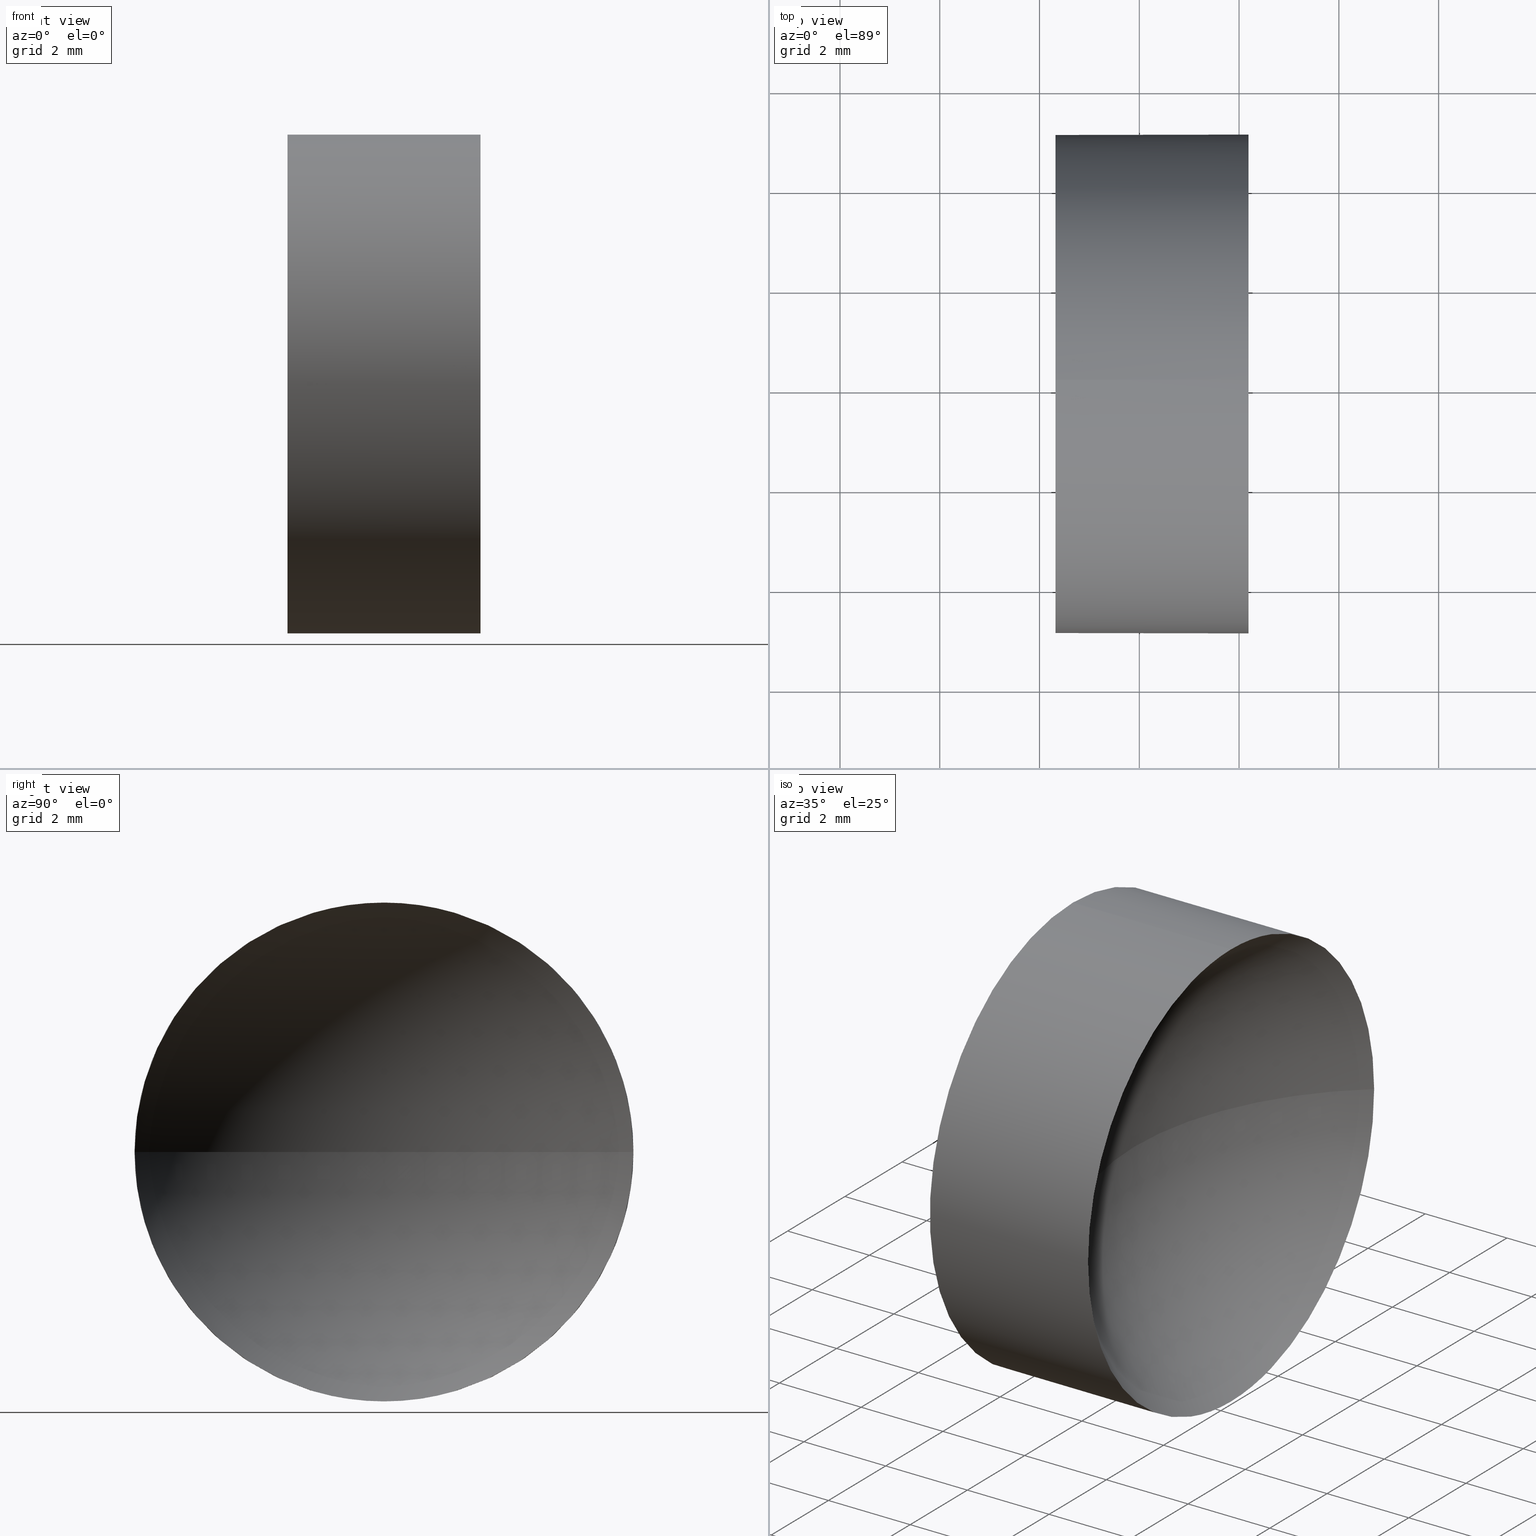
[diagram: canonical four-view strip — front | top / right | iso, engineering-drawing reading convention]
A machine part, canonical four-view strip (front | top / right | iso — engineering-drawing reading convention). The complete STEP part file that produces these views, byte-faithful:
ISO-10303-21;
HEADER;
FILE_DESCRIPTION (( 'STEP AP214' ),
    '1' );
FILE_NAME ('120010.STEP',
    '2019-06-14T03:35:59',
    ( '' ),
    ( '' ),
    'SwSTEP 2.0',
    'SolidWorks 2016',
    '' );
FILE_SCHEMA (( 'AUTOMOTIVE_DESIGN' ));
ENDSEC;

DATA;
#1 = AXIS2_PLACEMENT_3D ( 'NONE', #17, #164, #165 ) ;
#2 = MECHANICAL_DESIGN_GEOMETRIC_PRESENTATION_REPRESENTATION (  '', ( #124 ), #97 ) ;
#3 = COLOUR_RGB ( '',1.000000000000000000, 1.000000000000000000, 1.000000000000000000 ) ;
#4 = CARTESIAN_POINT ( 'NONE',  ( 42.44986111413682300, 26.08904114919495900, -5.000000000000000900 ) ) ;
#5 = AXIS2_PLACEMENT_3D ( 'NONE', #88, #160, #28 ) ;
#6 = PRODUCT_RELATED_PRODUCT_CATEGORY ( 'part', '', ( #60 ) ) ;
#7 = PRODUCT_DEFINITION_SHAPE ( 'NONE', 'NONE',  #29 ) ;
#8 = SURFACE_STYLE_FILL_AREA ( #179 ) ;
#9 = VERTEX_POINT ( 'NONE', #12 ) ;
#10 = PRESENTATION_LAYER_ASSIGNMENT (  '', '', ( #181 ) ) ;
#11 = FACE_OUTER_BOUND ( 'NONE', #92, .T. ) ;
#12 = CARTESIAN_POINT ( 'NONE',  ( 44.31958549791029600, 26.08904114919495900, -5.000000000000000900 ) ) ;
#13 = ORIENTED_EDGE ( 'NONE', *, *, #50, .F. ) ;
#14 = ORIENTED_EDGE ( 'NONE', *, *, #50, .T. ) ;
#15 = CARTESIAN_POINT ( 'NONE',  ( 48.18958549791029400, 26.08904114919495900, 0.0000000000000000000 ) ) ;
#16 = MANIFOLD_SOLID_BREP ( '��ת1', #27 ) ;
#17 = CARTESIAN_POINT ( 'NONE',  ( 0.0000000000000000000, 0.0000000000000000000, 0.0000000000000000000 ) ) ;
#18 = PRODUCT_CONTEXT ( 'NONE', #151, 'mechanical' ) ;
#19 = EDGE_LOOP ( 'NONE', ( #111, #75 ) ) ;
#20 = AXIS2_PLACEMENT_3D ( 'NONE', #104, #117, #71 ) ;
#21 = AXIS2_PLACEMENT_3D ( 'NONE', #161, #148, #57 ) ;
#22 = VERTEX_POINT ( 'NONE', #83 ) ;
#23 = ORIENTED_EDGE ( 'NONE', *, *, #45, .T. ) ;
#24 = DIRECTION ( 'NONE',  ( -1.000000000000000000, -0.0000000000000000000, -0.0000000000000000000 ) ) ;
#25 =( LENGTH_UNIT ( ) NAMED_UNIT ( * ) SI_UNIT ( .MILLI., .METRE. ) );
#26 = CARTESIAN_POINT ( 'NONE',  ( 44.31958549791029600, 26.08904114919495900, 0.0000000000000000000 ) ) ;
#27 = CLOSED_SHELL ( 'NONE', ( #76, #61, #95, #90, #107 ) ) ;
#28 = DIRECTION ( 'NONE',  ( 0.0000000000000000000, -1.000000000000000000, -1.224646799147353000E-016 ) ) ;
#29 = PRODUCT_DEFINITION ( 'δ֪', '', #42, #116 ) ;
#30 = DIRECTION ( 'NONE',  ( -1.000000000000000000, -0.0000000000000000000, -0.0000000000000000000 ) ) ;
#31 =( NAMED_UNIT ( * ) PLANE_ANGLE_UNIT ( ) SI_UNIT ( $, .RADIAN. ) );
#32 = CIRCLE ( 'NONE', #56, 5.000000000000000900 ) ;
#33 = SPHERICAL_SURFACE ( 'NONE', #80, 6.459261603375526100 ) ;
#34 =( NAMED_UNIT ( * ) SI_UNIT ( $, .STERADIAN. ) SOLID_ANGLE_UNIT ( ) );
#35 = FACE_OUTER_BOUND ( 'NONE', #105, .T. ) ;
#36 = ORIENTED_EDGE ( 'NONE', *, *, #112, .T. ) ;
#37 = DIRECTION ( 'NONE',  ( 0.0000000000000000000, 0.0000000000000000000, 1.000000000000000000 ) ) ;
#38 = DIRECTION ( 'NONE',  ( 0.0000000000000000000, 0.0000000000000000000, 1.000000000000000000 ) ) ;
#39 = DIRECTION ( 'NONE',  ( 0.0000000000000000000, 0.0000000000000000000, 1.000000000000000000 ) ) ;
#40 = CIRCLE ( 'NONE', #131, 5.000000000000000900 ) ;
#41 = DIRECTION ( 'NONE',  ( -1.000000000000000000, -0.0000000000000000000, -0.0000000000000000000 ) ) ;
#42 = PRODUCT_DEFINITION_FORMATION_WITH_SPECIFIED_SOURCE ( '�κ�', '', #60, .NOT_KNOWN. ) ;
#43 =( LENGTH_UNIT ( ) NAMED_UNIT ( * ) SI_UNIT ( .MILLI., .METRE. ) );
#44 = ORIENTED_EDGE ( 'NONE', *, *, #110, .T. ) ;
#45 = EDGE_CURVE ( 'NONE', #22, #123, #122, .T. ) ;
#46 = ORIENTED_EDGE ( 'NONE', *, *, #125, .F. ) ;
#47 = CARTESIAN_POINT ( 'NONE',  ( 52.27884710128582700, 26.08904114919495900, 0.0000000000000000000 ) ) ;
#48 = CIRCLE ( 'NONE', #178, 5.000000000000000900 ) ;
#49 = ORIENTED_EDGE ( 'NONE', *, *, #112, .F. ) ;
#50 = EDGE_CURVE ( 'NONE', #85, #22, #137, .T. ) ;
#51 = CARTESIAN_POINT ( 'NONE',  ( 48.18958549791029400, 31.08904114919495900, 6.123233995736765300E-016 ) ) ;
#52 = DIRECTION ( 'NONE',  ( -1.000000000000000000, -0.0000000000000000000, -0.0000000000000000000 ) ) ;
#53 = CARTESIAN_POINT ( 'NONE',  ( 42.44986111413682300, 26.08904114919495900, 0.0000000000000000000 ) ) ;
#54 = COLOUR_RGB ( '',1.000000000000000000, 1.000000000000000000, 1.000000000000000000 ) ;
#55 = CARTESIAN_POINT ( 'NONE',  ( 45.81958549791029600, 26.08904114919495900, 0.0000000000000000000 ) ) ;
#56 = AXIS2_PLACEMENT_3D ( 'NONE', #174, #30, #135 ) ;
#57 = DIRECTION ( 'NONE',  ( 0.0000000000000000000, 0.0000000000000000000, 1.000000000000000000 ) ) ;
#58 = VERTEX_POINT ( 'NONE', #51 ) ;
#59 =( NAMED_UNIT ( * ) SI_UNIT ( $, .STERADIAN. ) SOLID_ANGLE_UNIT ( ) );
#60 = PRODUCT ( '120010', '120010', '', ( #18 ) ) ;
#61 = ADVANCED_FACE ( 'NONE', ( #11 ), #78, .F. ) ;
#62 = APPLICATION_PROTOCOL_DEFINITION ( 'draft international standard', 'automotive_design', 1998, #106 ) ;
#63 = ORIENTED_EDGE ( 'NONE', *, *, #139, .T. ) ;
#64 = AXIS2_PLACEMENT_3D ( 'NONE', #53, #147, #171 ) ;
#65 = ORIENTED_EDGE ( 'NONE', *, *, #180, .F. ) ;
#66 = FILL_AREA_STYLE ('',( #101 ) ) ;
#67 = VERTEX_POINT ( 'NONE', #118 ) ;
#68 = SURFACE_SIDE_STYLE ('',( #173 ) ) ;
#69 = LINE ( 'NONE', #132, #121 ) ;
#70 = ORIENTED_EDGE ( 'NONE', *, *, #155, .F. ) ;
#71 = DIRECTION ( 'NONE',  ( -1.000000000000000000, 0.0000000000000000000, 0.0000000000000000000 ) ) ;
#72 = CARTESIAN_POINT ( 'NONE',  ( 44.31958549791029600, 26.08904114919495900, 0.0000000000000000000 ) ) ;
#73 = VECTOR ( 'NONE', #86, 1000.000000000000000 ) ;
#74 = PLANE ( 'NONE',  #96 ) ;
#75 = ORIENTED_EDGE ( 'NONE', *, *, #155, .T. ) ;
#76 = ADVANCED_FACE ( 'NONE', ( #108 ), #82, .T. ) ;
#77 = CIRCLE ( 'NONE', #21, 5.000000000000000900 ) ;
#78 = SPHERICAL_SURFACE ( 'NONE', #184, 6.459261603375526100 ) ;
#79 = ORIENTED_EDGE ( 'NONE', *, *, #120, .F. ) ;
#80 = AXIS2_PLACEMENT_3D ( 'NONE', #136, #37, #150 ) ;
#81 = UNCERTAINTY_MEASURE_WITH_UNIT (LENGTH_MEASURE( 1.000000000000000100E-005 ), #25, 'distance_accuracy_value', 'NONE');
#82 = CYLINDRICAL_SURFACE ( 'NONE', #166, 5.000000000000000900 ) ;
#83 = CARTESIAN_POINT ( 'NONE',  ( 48.18958549791029400, 21.08904114919495900, 0.0000000000000000000 ) ) ;
#84 = FACE_OUTER_BOUND ( 'NONE', #19, .T. ) ;
#85 = VERTEX_POINT ( 'NONE', #146 ) ;
#86 = DIRECTION ( 'NONE',  ( -1.000000000000000000, -0.0000000000000000000, -0.0000000000000000000 ) ) ;
#87 = DIRECTION ( 'NONE',  ( 0.0000000000000000000, 0.0000000000000000000, 1.000000000000000000 ) ) ;
#88 = CARTESIAN_POINT ( 'NONE',  ( 52.27884710128582700, 26.08904114919495900, 0.0000000000000000000 ) ) ;
#89 = CIRCLE ( 'NONE', #20, 6.459261603375524400 ) ;
#90 = ADVANCED_FACE ( 'NONE', ( #35 ), #185, .T. ) ;
#91 = ADVANCED_BREP_SHAPE_REPRESENTATION ( '120010', ( #16, #1 ), #168 ) ;
#92 = EDGE_LOOP ( 'NONE', ( #79, #44, #46, #13 ) ) ;
#93 =( NAMED_UNIT ( * ) PLANE_ANGLE_UNIT ( ) SI_UNIT ( $, .RADIAN. ) );
#94 =( LENGTH_UNIT ( ) NAMED_UNIT ( * ) SI_UNIT ( .MILLI., .METRE. ) );
#95 = ADVANCED_FACE ( 'NONE', ( #140 ), #33, .F. ) ;
#96 = AXIS2_PLACEMENT_3D ( 'NONE', #26, #186, #103 ) ;
#97 =( GEOMETRIC_REPRESENTATION_CONTEXT ( 3 ) GLOBAL_UNCERTAINTY_ASSIGNED_CONTEXT ( ( #81 ) ) GLOBAL_UNIT_ASSIGNED_CONTEXT ( ( #25, #115, #34 ) ) REPRESENTATION_CONTEXT ( 'NONE', 'WORKASPACE' ) );
#98 = SHAPE_DEFINITION_REPRESENTATION ( #7, #91 ) ;
#99 = DIRECTION ( 'NONE',  ( -1.000000000000000000, -0.0000000000000000000, -0.0000000000000000000 ) ) ;
#100 = VERTEX_POINT ( 'NONE', #55 ) ;
#101 = FILL_AREA_STYLE_COLOUR ( '', #54 ) ;
#102 = MECHANICAL_DESIGN_GEOMETRIC_PRESENTATION_REPRESENTATION (  '', ( #181 ), #142 ) ;
#103 = DIRECTION ( 'NONE',  ( 0.0000000000000000000, 0.0000000000000000000, -1.000000000000000000 ) ) ;
#104 = CARTESIAN_POINT ( 'NONE',  ( 52.27884710128582700, 26.08904114919495900, 0.0000000000000000000 ) ) ;
#105 = EDGE_LOOP ( 'NONE', ( #65, #14, #23, #36, #70 ) ) ;
#106 = APPLICATION_CONTEXT ( 'automotive_design' ) ;
#107 = ADVANCED_FACE ( 'NONE', ( #84 ), #74, .F. ) ;
#108 = FACE_OUTER_BOUND ( 'NONE', #133, .T. ) ;
#109 = ORIENTED_EDGE ( 'NONE', *, *, #180, .T. ) ;
#110 = EDGE_CURVE ( 'NONE', #58, #100, #114, .T. ) ;
#111 = ORIENTED_EDGE ( 'NONE', *, *, #143, .T. ) ;
#112 = EDGE_CURVE ( 'NONE', #123, #67, #69, .T. ) ;
#113 = UNCERTAINTY_MEASURE_WITH_UNIT (LENGTH_MEASURE( 1.000000000000000100E-005 ), #43, 'distance_accuracy_value', 'NONE');
#114 = CIRCLE ( 'NONE', #5, 6.459261603375527900 ) ;
#115 =( NAMED_UNIT ( * ) PLANE_ANGLE_UNIT ( ) SI_UNIT ( $, .RADIAN. ) );
#116 = PRODUCT_DEFINITION_CONTEXT ( 'detailed design', #106, 'design' ) ;
#117 = DIRECTION ( 'NONE',  ( 0.0000000000000000000, 0.0000000000000000000, -1.000000000000000000 ) ) ;
#118 = CARTESIAN_POINT ( 'NONE',  ( 44.31958549791029600, 26.08904114919495900, 5.000000000000000900 ) ) ;
#119 = AXIS2_PLACEMENT_3D ( 'NONE', #156, #24, #159 ) ;
#120 = EDGE_CURVE ( 'NONE', #58, #85, #48, .T. ) ;
#121 = VECTOR ( 'NONE', #149, 1000.000000000000000 ) ;
#122 = CIRCLE ( 'NONE', #119, 5.000000000000000900 ) ;
#123 = VERTEX_POINT ( 'NONE', #130 ) ;
#124 = STYLED_ITEM ( 'NONE', ( #182 ), #16 ) ;
#125 = EDGE_CURVE ( 'NONE', #22, #100, #89, .T. ) ;
#126 = AXIS2_PLACEMENT_3D ( 'NONE', #145, #52, #170 ) ;
#127 = DIRECTION ( 'NONE',  ( 0.0000000000000000000, -1.000000000000000000, 0.0000000000000000000 ) ) ;
#128 = ORIENTED_EDGE ( 'NONE', *, *, #125, .T. ) ;
#129 = CARTESIAN_POINT ( 'NONE',  ( 42.44986111413682300, 26.08904114919495900, 0.0000000000000000000 ) ) ;
#130 = CARTESIAN_POINT ( 'NONE',  ( 48.18958549791029400, 26.08904114919495900, 5.000000000000000900 ) ) ;
#131 = AXIS2_PLACEMENT_3D ( 'NONE', #72, #134, #39 ) ;
#132 = CARTESIAN_POINT ( 'NONE',  ( 42.44986111413682300, 26.08904114919495900, 5.000000000000000900 ) ) ;
#133 = EDGE_LOOP ( 'NONE', ( #141, #109, #176, #49, #63 ) ) ;
#134 = DIRECTION ( 'NONE',  ( -1.000000000000000000, -0.0000000000000000000, -0.0000000000000000000 ) ) ;
#135 = DIRECTION ( 'NONE',  ( 0.0000000000000000000, 0.0000000000000000000, 1.000000000000000000 ) ) ;
#136 = CARTESIAN_POINT ( 'NONE',  ( 52.27884710128582700, 26.08904114919495900, 0.0000000000000000000 ) ) ;
#137 = CIRCLE ( 'NONE', #126, 5.000000000000000900 ) ;
#138 =( NAMED_UNIT ( * ) SI_UNIT ( $, .STERADIAN. ) SOLID_ANGLE_UNIT ( ) );
#139 = EDGE_CURVE ( 'NONE', #123, #58, #32, .T. ) ;
#140 = FACE_OUTER_BOUND ( 'NONE', #183, .T. ) ;
#141 = ORIENTED_EDGE ( 'NONE', *, *, #120, .T. ) ;
#142 =( GEOMETRIC_REPRESENTATION_CONTEXT ( 3 ) GLOBAL_UNCERTAINTY_ASSIGNED_CONTEXT ( ( #113 ) ) GLOBAL_UNIT_ASSIGNED_CONTEXT ( ( #43, #31, #138 ) ) REPRESENTATION_CONTEXT ( 'NONE', 'WORKASPACE' ) );
#143 = EDGE_CURVE ( 'NONE', #67, #9, #77, .T. ) ;
#144 = PRESENTATION_STYLE_ASSIGNMENT (( #177 ) ) ;
#145 = CARTESIAN_POINT ( 'NONE',  ( 48.18958549791029400, 26.08904114919495900, 0.0000000000000000000 ) ) ;
#146 = CARTESIAN_POINT ( 'NONE',  ( 48.18958549791029400, 26.08904114919495900, -5.000000000000000900 ) ) ;
#147 = DIRECTION ( 'NONE',  ( -1.000000000000000000, -0.0000000000000000000, -0.0000000000000000000 ) ) ;
#148 = DIRECTION ( 'NONE',  ( -1.000000000000000000, -0.0000000000000000000, -0.0000000000000000000 ) ) ;
#149 = DIRECTION ( 'NONE',  ( -1.000000000000000000, -0.0000000000000000000, -0.0000000000000000000 ) ) ;
#150 = DIRECTION ( 'NONE',  ( 0.0000000000000000000, -1.000000000000000000, 0.0000000000000000000 ) ) ;
#151 = APPLICATION_CONTEXT ( 'automotive_design' ) ;
#152 = LINE ( 'NONE', #4, #73 ) ;
#153 = ORIENTED_EDGE ( 'NONE', *, *, #110, .F. ) ;
#154 = SURFACE_SIDE_STYLE ('',( #8 ) ) ;
#155 = EDGE_CURVE ( 'NONE', #9, #67, #40, .T. ) ;
#156 = CARTESIAN_POINT ( 'NONE',  ( 48.18958549791029400, 26.08904114919495900, 0.0000000000000000000 ) ) ;
#157 = PRESENTATION_LAYER_ASSIGNMENT (  '', '', ( #124 ) ) ;
#158 = UNCERTAINTY_MEASURE_WITH_UNIT (LENGTH_MEASURE( 1.000000000000000100E-005 ), #94, 'distance_accuracy_value', 'NONE');
#159 = DIRECTION ( 'NONE',  ( 0.0000000000000000000, 0.0000000000000000000, 1.000000000000000000 ) ) ;
#160 = DIRECTION ( 'NONE',  ( 0.0000000000000000000, -1.224646799147353200E-016, 1.000000000000000000 ) ) ;
#161 = CARTESIAN_POINT ( 'NONE',  ( 44.31958549791029600, 26.08904114919495900, 0.0000000000000000000 ) ) ;
#162 = ORIENTED_EDGE ( 'NONE', *, *, #139, .F. ) ;
#163 = FILL_AREA_STYLE_COLOUR ( '', #3 ) ;
#164 = DIRECTION ( 'NONE',  ( 0.0000000000000000000, 0.0000000000000000000, 1.000000000000000000 ) ) ;
#165 = DIRECTION ( 'NONE',  ( 1.000000000000000000, 0.0000000000000000000, 0.0000000000000000000 ) ) ;
#166 = AXIS2_PLACEMENT_3D ( 'NONE', #129, #99, #87 ) ;
#167 = DIRECTION ( 'NONE',  ( 0.0000000000000000000, 0.0000000000000000000, 1.000000000000000000 ) ) ;
#168 =( GEOMETRIC_REPRESENTATION_CONTEXT ( 3 ) GLOBAL_UNCERTAINTY_ASSIGNED_CONTEXT ( ( #158 ) ) GLOBAL_UNIT_ASSIGNED_CONTEXT ( ( #94, #93, #59 ) ) REPRESENTATION_CONTEXT ( 'NONE', 'WORKASPACE' ) );
#169 = SURFACE_STYLE_USAGE ( .BOTH. , #68 ) ;
#170 = DIRECTION ( 'NONE',  ( 0.0000000000000000000, 0.0000000000000000000, 1.000000000000000000 ) ) ;
#171 = DIRECTION ( 'NONE',  ( 0.0000000000000000000, 0.0000000000000000000, 1.000000000000000000 ) ) ;
#172 = ORIENTED_EDGE ( 'NONE', *, *, #45, .F. ) ;
#173 = SURFACE_STYLE_FILL_AREA ( #66 ) ;
#174 = CARTESIAN_POINT ( 'NONE',  ( 48.18958549791029400, 26.08904114919495900, 0.0000000000000000000 ) ) ;
#175 = APPLICATION_PROTOCOL_DEFINITION ( 'draft international standard', 'automotive_design', 1998, #151 ) ;
#176 = ORIENTED_EDGE ( 'NONE', *, *, #143, .F. ) ;
#177 = SURFACE_STYLE_USAGE ( .BOTH. , #154 ) ;
#178 = AXIS2_PLACEMENT_3D ( 'NONE', #15, #41, #38 ) ;
#179 = FILL_AREA_STYLE ('',( #163 ) ) ;
#180 = EDGE_CURVE ( 'NONE', #85, #9, #152, .T. ) ;
#181 = STYLED_ITEM ( 'NONE', ( #144 ), #91 ) ;
#182 = PRESENTATION_STYLE_ASSIGNMENT (( #169 ) ) ;
#183 = EDGE_LOOP ( 'NONE', ( #153, #162, #172, #128 ) ) ;
#184 = AXIS2_PLACEMENT_3D ( 'NONE', #47, #167, #127 ) ;
#185 = CYLINDRICAL_SURFACE ( 'NONE', #64, 5.000000000000000900 ) ;
#186 = DIRECTION ( 'NONE',  ( 1.000000000000000000, 0.0000000000000000000, 0.0000000000000000000 ) ) ;
ENDSEC;
END-ISO-10303-21;
